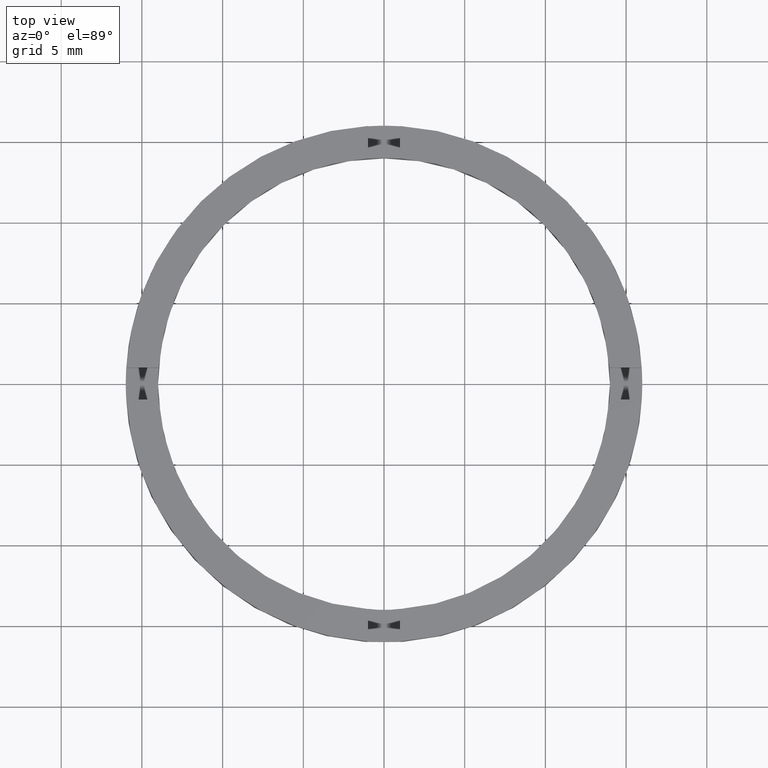
[diagram: clean part render]
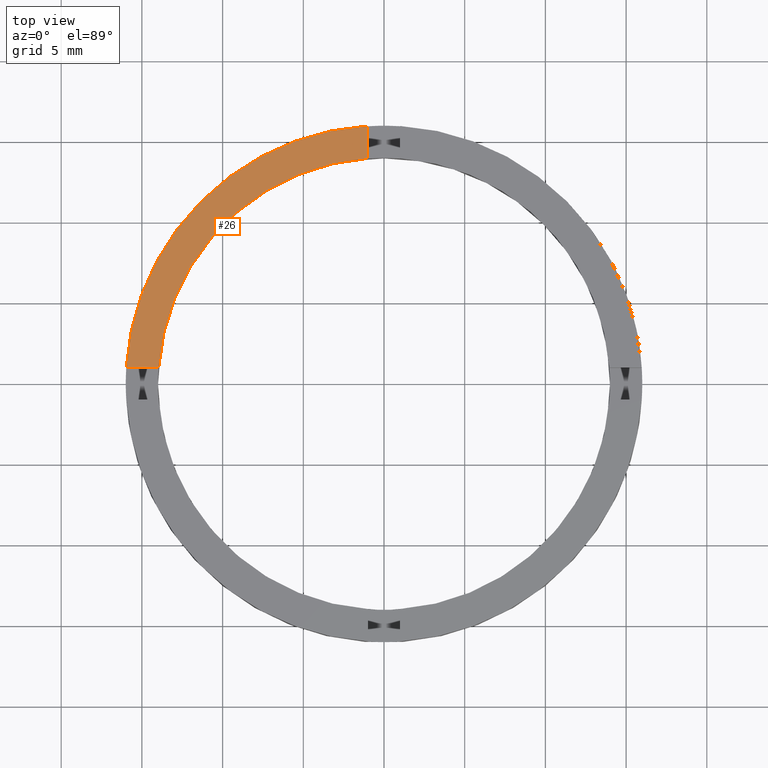
[diagram: same view with one face highlighted and labeled with its STEP entity id]
A machine part, top view. The second image highlights one B-rep face of the part: STEP entity #26.
In plain terms, the highlighted planar face has unit normal (0, 0, 1).
Its self-contained STEP definition (entity closure, byte-faithful):
#26 = ADVANCED_FACE ( 'NONE', ( #329 ), #50, .T. ) ;
#50 = PLANE ( 'NONE',  #99 ) ;
#69 = EDGE_CURVE ( 'NONE', #679, #149, #189, .T. ) ;
#99 = AXIS2_PLACEMENT_3D ( 'NONE', #594, #477, #542 ) ;
#118 = CIRCLE ( 'NONE', #560, 16.00000000000000000 ) ;
#124 = ORIENTED_EDGE ( 'NONE', *, *, #586, .F. ) ;
#149 = VERTEX_POINT ( 'NONE', #449 ) ;
#160 = ORIENTED_EDGE ( 'NONE', *, *, #168, .T. ) ;
#168 = EDGE_CURVE ( 'NONE', #679, #639, #118, .T. ) ;
#189 = LINE ( 'NONE', #248, #439 ) ;
#205 = CARTESIAN_POINT ( 'NONE',  ( -13.96424004376894246, 0.9999999999999772404, 2.500000000000000000 ) ) ;
#245 = CARTESIAN_POINT ( 'NONE',  ( 0.000000000000000000, 0.000000000000000000, 2.500000000000000000 ) ) ;
#248 = CARTESIAN_POINT ( 'NONE',  ( -1.000000000000024869, 6.000000000000000000, 2.500000000000000000 ) ) ;
#266 = CARTESIAN_POINT ( 'NONE',  ( -15.96871942267131317, 0.9999999999999767963, 2.500000000000000000 ) ) ;
#269 = AXIS2_PLACEMENT_3D ( 'NONE', #245, #709, #281 ) ;
#281 = DIRECTION ( 'NONE',  ( 1.000000000000000000, 0.000000000000000000, 0.000000000000000000 ) ) ;
#292 = DIRECTION ( 'NONE',  ( 1.000000000000000000, 0.000000000000000000, 0.000000000000000000 ) ) ;
#299 = DIRECTION ( 'NONE',  ( -1.000000000000000000, -1.734723475976807341E-16, 0.000000000000000000 ) ) ;
#309 = DIRECTION ( 'NONE',  ( -0.000000000000000000, -1.000000000000000000, -0.000000000000000000 ) ) ;
#329 = FACE_OUTER_BOUND ( 'NONE', #425, .T. ) ;
#331 = DIRECTION ( 'NONE',  ( 0.000000000000000000, 0.000000000000000000, 1.000000000000000000 ) ) ;
#381 = ORIENTED_EDGE ( 'NONE', *, *, #582, .F. ) ;
#425 = EDGE_LOOP ( 'NONE', ( #450, #160, #381, #124 ) ) ;
#439 = VECTOR ( 'NONE', #309, 1000.000000000000000 ) ;
#449 = CARTESIAN_POINT ( 'NONE',  ( -1.000000000000024869, 13.96424004376894068, 2.500000000000000000 ) ) ;
#450 = ORIENTED_EDGE ( 'NONE', *, *, #69, .F. ) ;
#461 = LINE ( 'NONE', #579, #502 ) ;
#477 = DIRECTION ( 'NONE',  ( 0.000000000000000000, 0.000000000000000000, 1.000000000000000000 ) ) ;
#502 = VECTOR ( 'NONE', #299, 1000.000000000000000 ) ;
#542 = DIRECTION ( 'NONE',  ( 1.000000000000000000, 0.000000000000000000, -0.000000000000000000 ) ) ;
#550 = CARTESIAN_POINT ( 'NONE',  ( -1.000000000000024869, 15.96871942267130962, 2.500000000000000000 ) ) ;
#560 = AXIS2_PLACEMENT_3D ( 'NONE', #778, #331, #292 ) ;
#579 = CARTESIAN_POINT ( 'NONE',  ( -6.000000000000185629, 0.9999999999999785727, 2.500000000000000000 ) ) ;
#582 = EDGE_CURVE ( 'NONE', #719, #639, #461, .T. ) ;
#586 = EDGE_CURVE ( 'NONE', #149, #719, #763, .T. ) ;
#594 = CARTESIAN_POINT ( 'NONE',  ( 0.000000000000000000, 0.000000000000000000, 2.500000000000000000 ) ) ;
#639 = VERTEX_POINT ( 'NONE', #266 ) ;
#679 = VERTEX_POINT ( 'NONE', #550 ) ;
#709 = DIRECTION ( 'NONE',  ( 0.000000000000000000, 0.000000000000000000, 1.000000000000000000 ) ) ;
#719 = VERTEX_POINT ( 'NONE', #205 ) ;
#763 = CIRCLE ( 'NONE', #269, 14.00000000000000000 ) ;
#778 = CARTESIAN_POINT ( 'NONE',  ( 0.000000000000000000, 0.000000000000000000, 2.500000000000000000 ) ) ;